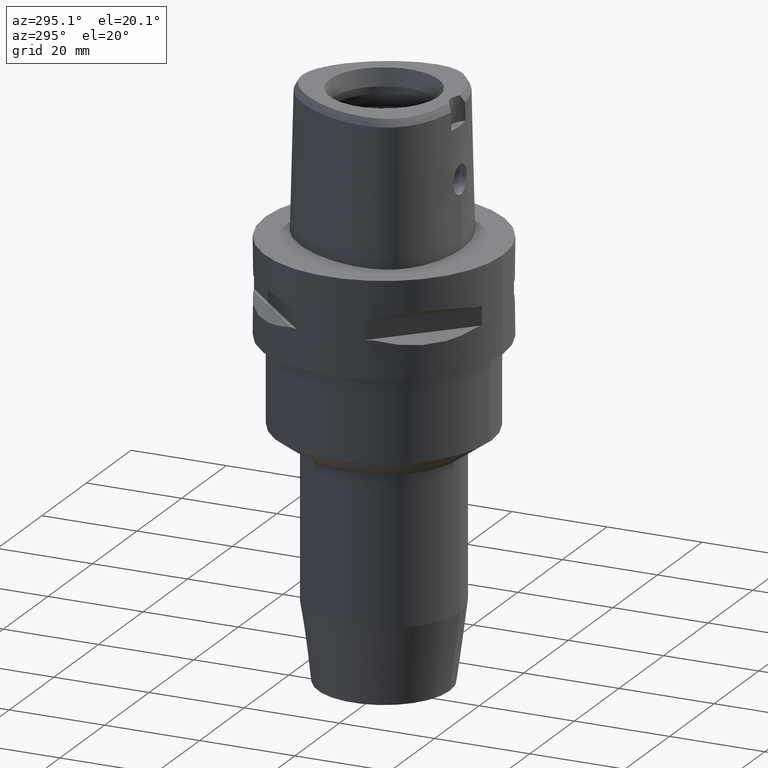
[diagram: clean part render]
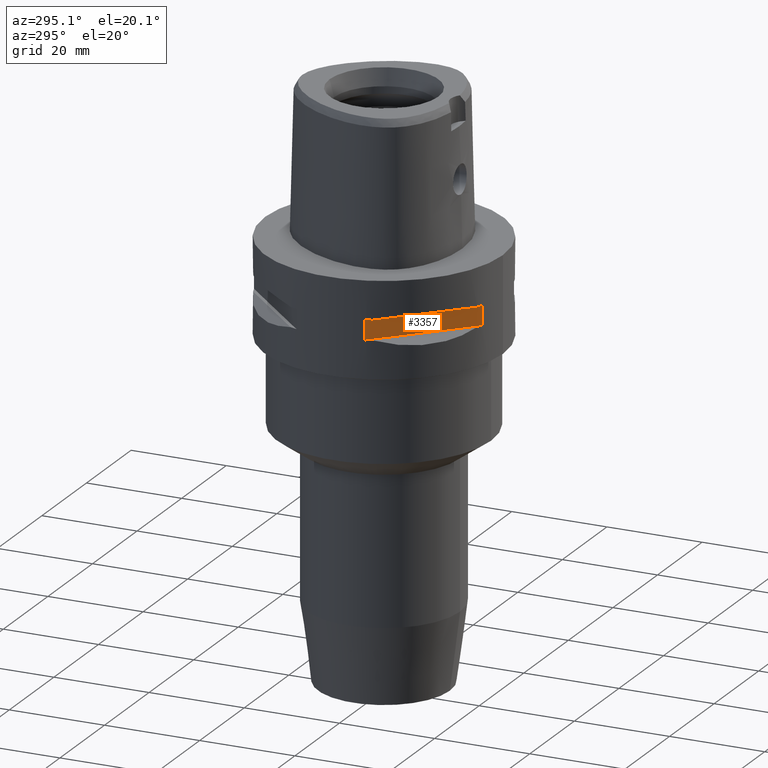
[diagram: same view with one face highlighted and labeled with its STEP entity id]
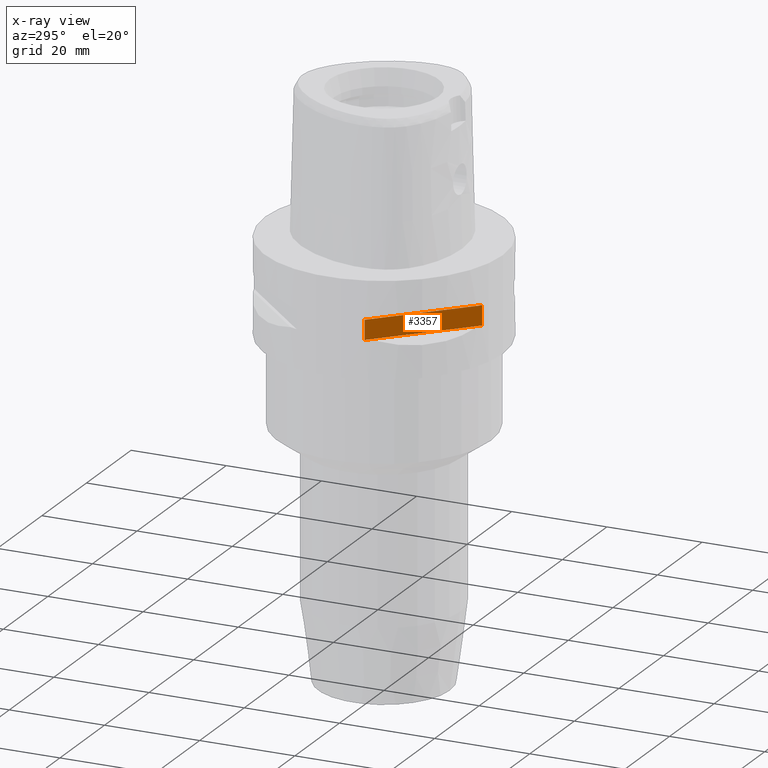
[diagram: x-ray of the same camera — body ghosted, the highlighted face saturated]
A machine part, auxiliary view. The second image highlights one B-rep face of the part: STEP entity #3357.
The next image is the same camera in x-ray: the body ghosted, the highlighted face saturated — about 0% of this face is hidden behind the body in this view.
In plain terms, the highlighted planar face has unit normal (0.7071, 0.7071, 0).
Its self-contained STEP definition (entity closure, byte-faithful):
#408=DIRECTION('',(0.E0,0.E0,-1.E0));
#409=VECTOR('',#408,4.1E0);
#410=CARTESIAN_POINT('',(-2.395277699798E1,-7.159921374231E0,-7.95E0));
#411=LINE('',#410,#409);
#426=DIRECTION('',(0.E0,0.E0,1.E0));
#427=VECTOR('',#426,4.1E0);
#428=CARTESIAN_POINT('',(-7.159921374231E0,-2.395277699798E1,-1.205E1));
#429=LINE('',#428,#427);
#1483=DIRECTION('',(7.071067811865E-1,-7.071067811865E-1,0.E0));
#1484=VECTOR('',#1483,2.374868417407E1);
#1485=CARTESIAN_POINT('',(-2.395277699798E1,-7.159921374231E0,-7.95E0));
#1486=LINE('',#1485,#1484);
#1506=DIRECTION('',(7.071067811865E-1,-7.071067811865E-1,0.E0));
#1507=VECTOR('',#1506,2.374868417407E1);
#1508=CARTESIAN_POINT('',(-2.395277699798E1,-7.159921374231E0,-1.205E1));
#1509=LINE('',#1508,#1507);
#1565=CARTESIAN_POINT('',(-2.395277699798E1,-7.159921374235E0,-7.95E0));
#1566=VERTEX_POINT('',#1565);
#1567=CARTESIAN_POINT('',(-2.395277699798E1,-7.159921374231E0,-1.205E1));
#1568=VERTEX_POINT('',#1567);
#1572=CARTESIAN_POINT('',(-7.159921374235E0,-2.395277699798E1,-1.205E1));
#1573=VERTEX_POINT('',#1572);
#1574=CARTESIAN_POINT('',(-7.159921374231E0,-2.395277699798E1,-7.95E0));
#1575=VERTEX_POINT('',#1574);
#3345=CARTESIAN_POINT('',(-4.949747468306E0,-2.616295090390E1,-7.95E0));
#3346=DIRECTION('',(7.071067811865E-1,7.071067811865E-1,0.E0));
#3347=DIRECTION('',(0.E0,0.E0,-1.E0));
#3348=AXIS2_PLACEMENT_3D('',#3345,#3346,#3347);
#3349=PLANE('',#3348);
#3350=ORIENTED_EDGE('',*,*,#2372,.F.);
#3352=ORIENTED_EDGE('',*,*,#3351,.F.);
#3353=ORIENTED_EDGE('',*,*,#2364,.F.);
#3354=ORIENTED_EDGE('',*,*,#3338,.T.);
#3355=EDGE_LOOP('',(#3350,#3352,#3353,#3354));
#3356=FACE_OUTER_BOUND('',#3355,.F.);
#2364=EDGE_CURVE('',#1566,#1568,#411,.T.);
#2372=EDGE_CURVE('',#1573,#1575,#429,.T.);
#3338=EDGE_CURVE('',#1566,#1575,#1486,.T.);
#3351=EDGE_CURVE('',#1568,#1573,#1509,.T.);
#3357=ADVANCED_FACE('',(#3356),#3349,.F.);